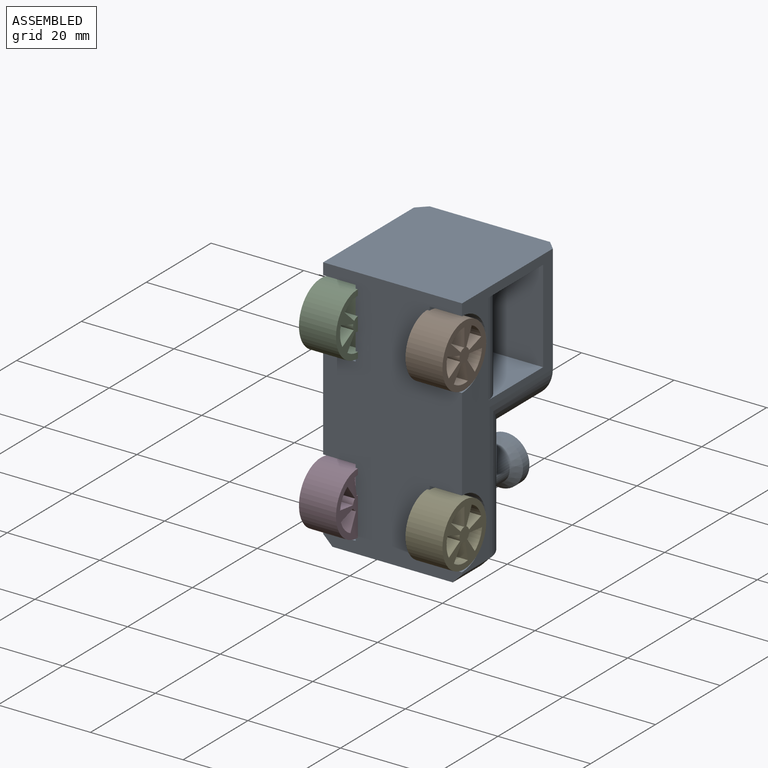
[diagram: assembled view]
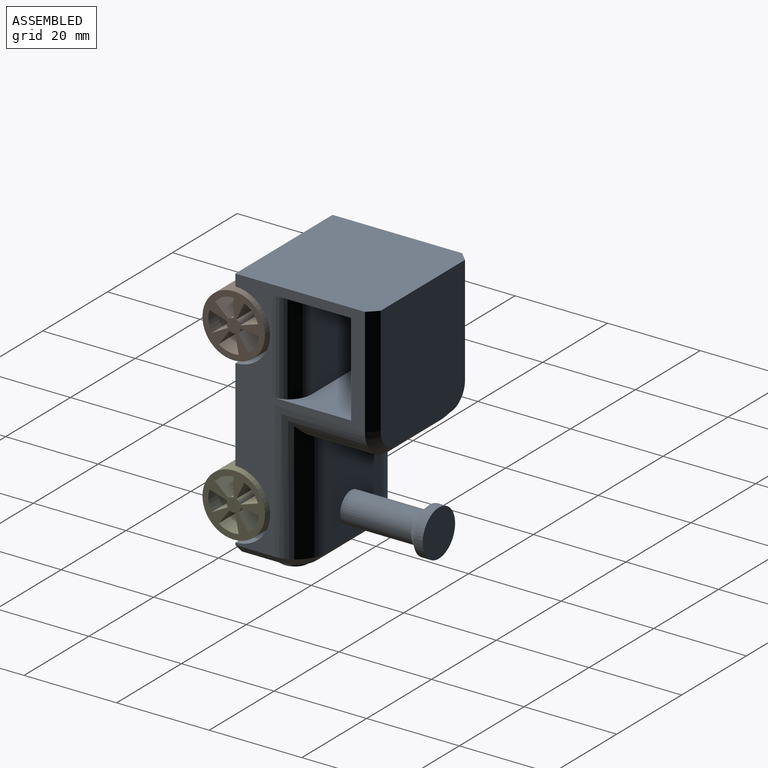
[diagram: assembled view, second angle]
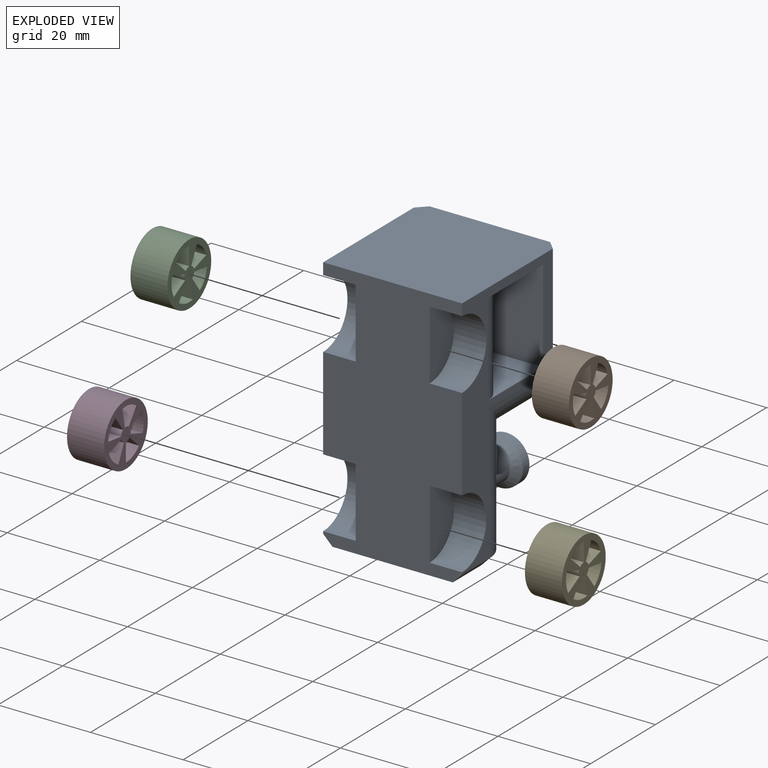
[diagram: exploded view]
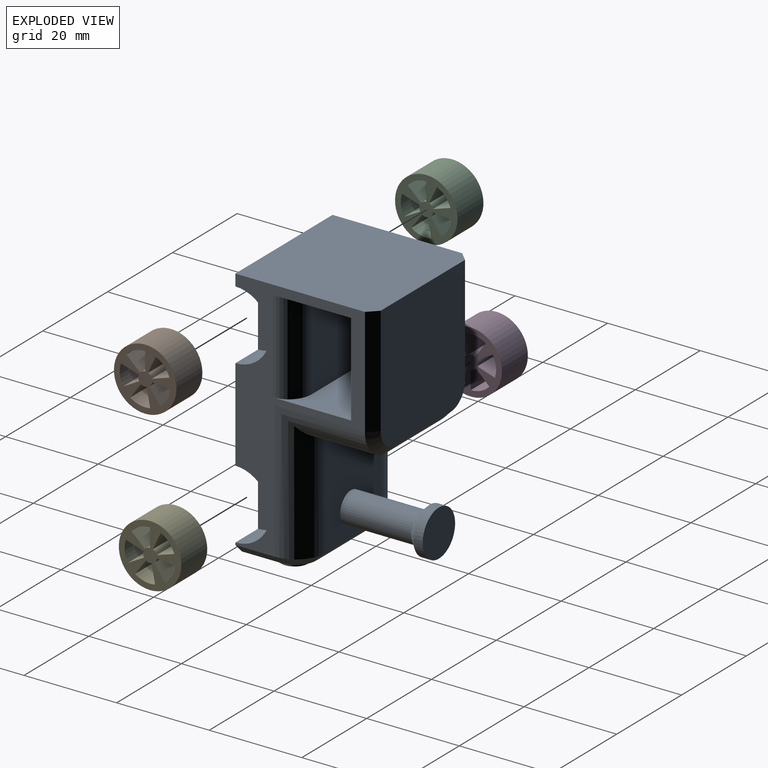
[diagram: exploded view, second angle]
ASSEMBLY  parts=5 mates=4
PART A: 44 faces, bbox 56x34x30 mm
  f0: plane 53x28mm, normal (0,0,-1), area 392mm2, adj f4,f5,f12,f14,f16,f17,f24,f29
  f1: plane 28x26mm, normal (0,1,0), area 719.3mm2, adj f5,f25,f26,f27,f28,f29
  f2: plane 26x13mm, normal (-1,0,0), area 272.8mm2, adj f4,f20,f21,f22,f23,f24,f36,f38
  f3: plane 53x28mm, normal (0,0,1), area 392mm2, adj f4,f5,f8,f10,f18,f19,f20,f25
  f4: plane 55x30mm, normal (0,-1,0), area 1226mm2, adj f0,f2,f3,f5,f8,f9,f10,f11
  f5: plane 30x30mm, normal (1,0,0), area 896mm2, adj f0,f1,f3,f4,f25,f29
  f6: plane 17x13mm, normal (-1,0,0), area 221mm2, adj f7,f17,f19,f27
  f7: plane 23x17mm, normal (0,1,0), area 356.7mm2, adj f6,f16,f18,f22,f40
  f8: cylinder r=7.5mm len=15mm, axis (0,0,1), area 164.9mm2, adj f3,f4,f9
  f9: plane 15x7.5mm, normal (0,0,1), area 88.4mm2, adj f4,f8
  f10: cylinder r=7.5mm len=15mm, axis (0,0,1), area 164.9mm2, adj f3,f4,f11
  f11: plane 15x7.5mm, normal (0,0,1), area 88.4mm2, adj f4,f10
  f12: cylinder r=7.5mm len=15mm, axis (0,0,-1), area 164.9mm2, adj f0,f4,f13
  f13: plane 15x7.5mm, normal (0,0,-1), area 88.4mm2, adj f4,f12
  f14: cylinder r=7.5mm len=15mm, axis (0,0,-1), area 164.9mm2, adj f0,f4,f15
  f15: plane 15x7.5mm, normal (0,0,-1), area 88.4mm2, adj f4,f14
  f16: cylinder r=6.5mm len=29.5mm, axis (1,0,0), area 259mm2, adj f0,f7,f17,f23
  f17: cylinder r=6.5mm len=19.5mm, axis (0,1,0), area 156.8mm2, adj f0,f6,f16,f28
  f18: cylinder r=6.5mm len=29.5mm, axis (-1,0,0), area 259mm2, adj f3,f7,f19,f21
  f19: cylinder r=6.5mm len=19.5mm, axis (0,-1,0), area 156.8mm2, adj f3,f6,f18,f26
  f20: plane 8.5x2mm, normal (-0.71,0,0.71), area 24mm2, adj f2,f3,f4,f21
  f21: cone r=4.5mm half-angle=45deg, axis (1,0,0), area 24.4mm2, adj f2,f18,f20,f22
  f22: plane 17x2mm, normal (-0.71,0.71,0), area 48.1mm2, adj f2,f7,f21,f23
  f23: cone r=4.5mm half-angle=45deg, axis (1,0,0), area 24.4mm2, adj f2,f16,f22,f24
  f24: plane 8.5x2mm, normal (-0.71,0,-0.71), area 24mm2, adj f0,f2,f4,f23
  f25: plane 23.5x2mm, normal (0,0.71,0.71), area 66.5mm2, adj f1,f3,f5,f26
  f26: cone r=4.5mm half-angle=45deg, axis (0,-1,0), area 24.4mm2, adj f1,f19,f25,f27
  f27: plane 17x2mm, normal (-0.71,0.71,0), area 48.1mm2, adj f1,f6,f26,f28
  f28: cone r=4.5mm half-angle=45deg, axis (0,-1,0), area 24.4mm2, adj f1,f17,f27,f29
  f29: plane 23.5x2mm, normal (0,0.71,-0.71), area 66.5mm2, adj f0,f1,f5,f28
  f30: plane 30x17mm, normal (1,0,0), area 370.7mm2, adj f0,f3,f31,f33,f34,f35
  f31: plane 20x20mm, normal (0,1,0), area 400mm2, adj f30,f32,f34,f35
  f32: plane 30x17mm, normal (-1,0,0), area 370.7mm2, adj f0,f3,f31,f33,f34,f35
  f33: plane 30x20mm, normal (0,-1,0), area 600mm2, adj f0,f3,f30,f32
  f34: cylinder r=5mm len=20mm, axis (1,0,0), area 157.1mm2, adj f0,f30,f31,f32
  f35: cylinder r=5mm len=20mm, axis (-1,0,0), area 157.1mm2, adj f3,f30,f31,f32
  f36: cylinder r=3mm len=6mm, axis (1,0,0), area 18.8mm2, adj f2,f37
  f37: plane 6x6mm, normal (-1,0,0), area 28.3mm2, adj f36
  f38: cylinder r=3mm len=6mm, axis (1,0,0), area 18.8mm2, adj f2,f39
  f39: plane 6x6mm, normal (-1,0,0), area 28.3mm2, adj f38
  f40: cylinder r=3.3mm len=15.3mm, axis (0,-1,0), area 317.5mm2, adj f7,f43
  f41: cylinder r=5mm len=10mm, axis (0,-1,0), area 62.8mm2, adj f42,f43
  f42: plane 10x10mm, normal (0,1,0), area 78.5mm2, adj f41
  f43: cone r=5mm half-angle=45deg, axis (0,1,0), area 62.6mm2, adj f40,f41
PART B: 23 faces, bbox 8x13.5x13.5 mm
  f0: plane 13.5x13.5mm, normal (1,0,0), area 85mm2, adj f2,f3,f4,f5,f6,f7,f8,f9
  f1: plane 13.5x13.5mm, normal (-1,0,0), area 85mm2, adj f2,f3,f4,f5,f6,f7,f8,f9
  f2: cylinder r=6.75mm len=13.5mm, axis (-1,0,0), area 339.3mm2, adj f0,f1
  f3: plane 8x3.93mm, normal (0,-0.98,-0.19), area 32mm2, adj f0,f1,f4,f6
  f4: cylinder r=1.5mm len=8mm, axis (-1,0,0), area 10.1mm2, adj f0,f1,f3,f5
  f5: plane 8x3.24mm, normal (0,0.81,-0.59), area 32mm2, adj f0,f1,f4,f6
  f6: cylinder r=5.5mm len=8mm, axis (-1,0,0), area 36.4mm2, adj f0,f1,f3,f5
  f7: plane 8x2.93mm, normal (0,0.68,0.73), area 32mm2, adj f0,f1,f8,f10
  f8: cylinder r=1.5mm len=8mm, axis (-1,0,0), area 10.1mm2, adj f0,f1,f7,f9
  f9: plane 8x4mm, normal (0,-1,0), area 32mm2, adj f0,f1,f8,f10
  f10: cylinder r=5.5mm len=8mm, axis (-1,0,0), area 36.4mm2, adj f0,f1,f7,f9
  f11: plane 8x3.5mm, normal (0,-0.48,0.87), area 32mm2, adj f0,f1,f12,f14
  f12: cylinder r=1.5mm len=8mm, axis (-1,0,0), area 10.1mm2, adj f0,f1,f11,f13
  f13: plane 8x3.8mm, normal (0,-0.31,-0.95), area 32mm2, adj f0,f1,f12,f14
  f14: cylinder r=5.5mm len=8mm, axis (-1,0,0), area 36.4mm2, adj f0,f1,f11,f13
  f15: plane 8x3.8mm, normal (0,-0.31,0.95), area 32mm2, adj f0,f1,f16,f18
  f16: cylinder r=5.5mm len=8mm, axis (-1,0,0), area 36.4mm2, adj f0,f1,f15,f17
  f17: plane 8x3.63mm, normal (0,0.91,-0.42), area 32mm2, adj f0,f1,f16,f18
  f18: cylinder r=1.5mm len=8mm, axis (-1,0,0), area 10.1mm2, adj f0,f1,f15,f17
  f19: plane 8x3.97mm, normal (0,-0.12,-0.99), area 32mm2, adj f0,f1,f20,f22
  f20: cylinder r=1.5mm len=8mm, axis (-1,0,0), area 10.1mm2, adj f0,f1,f19,f21
  f21: plane 8x3.24mm, normal (0,0.81,0.59), area 32mm2, adj f0,f1,f20,f22
  f22: cylinder r=5.5mm len=8mm, axis (-1,0,0), area 36.4mm2, adj f0,f1,f19,f21
PART C: same geometry as B
PART D: same geometry as B
PART E: same geometry as B
PLACE A rot(axis=(0,-1,0),90deg) t=(81.14,19.43,-53.38)mm
PLACE B t=(73.64,4.43,-35.88)mm
PLACE C t=(50.64,4.43,-35.88)mm
PLACE D rot(axis=(-1,0,0),180deg) t=(50.64,4.43,-70.88)mm
PLACE E t=(73.64,4.43,-70.88)mm
MATE fastened A.f8 <-> B.f2  axis (1,0,0) through (77.64,4.43,-35.88)mm
MATE fastened D.f2 <-> A.f10  axis (-1,0,0) through (54.64,4.43,-70.88)mm
MATE fastened A.f10 <-> E.f2  axis (1,0,0) through (77.64,4.43,-70.88)mm
MATE fastened A.f8 <-> C.f2  axis (-1,0,0) through (54.64,4.43,-35.88)mm
